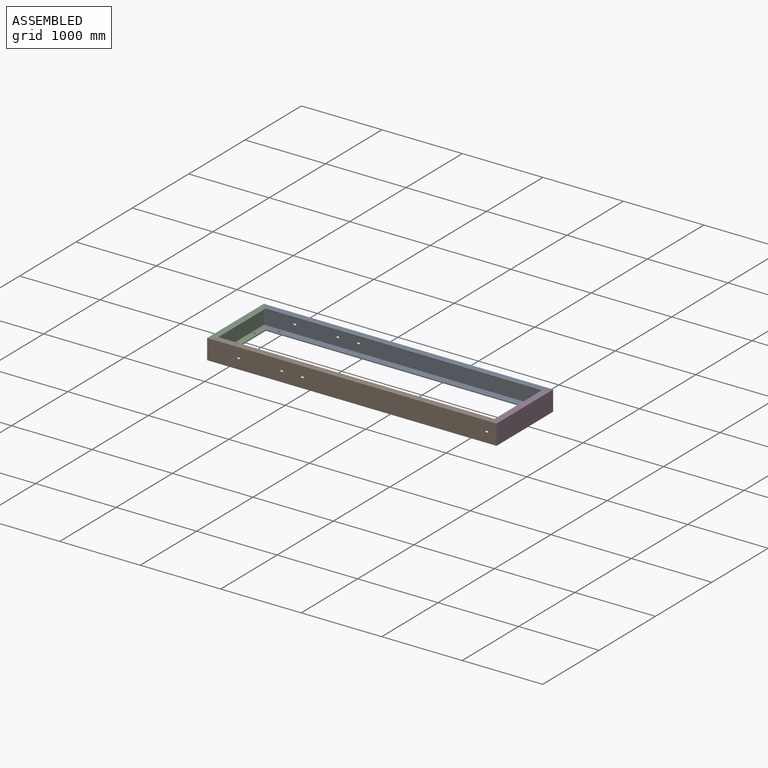
[diagram: assembled view]
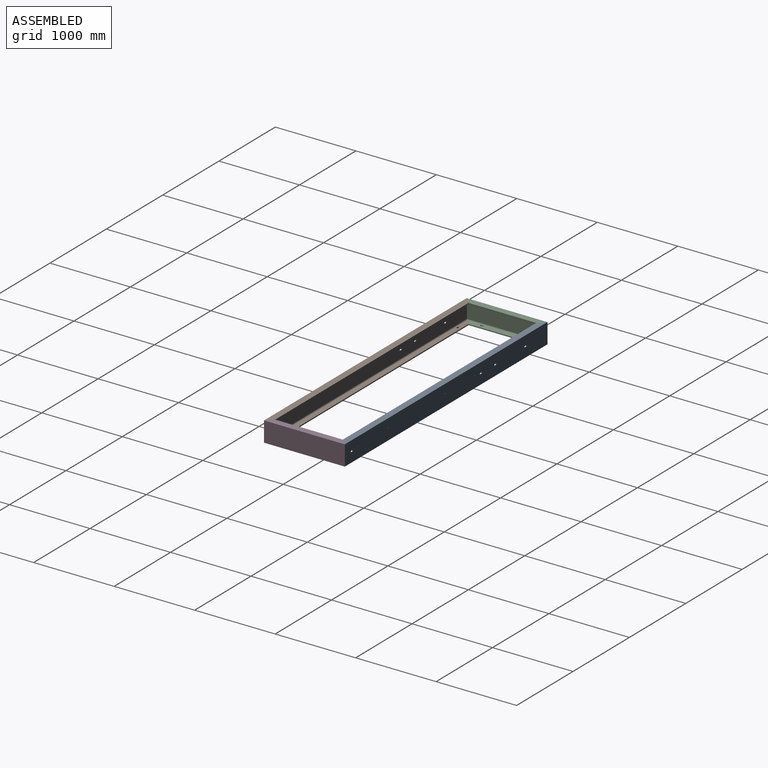
[diagram: assembled view, second angle]
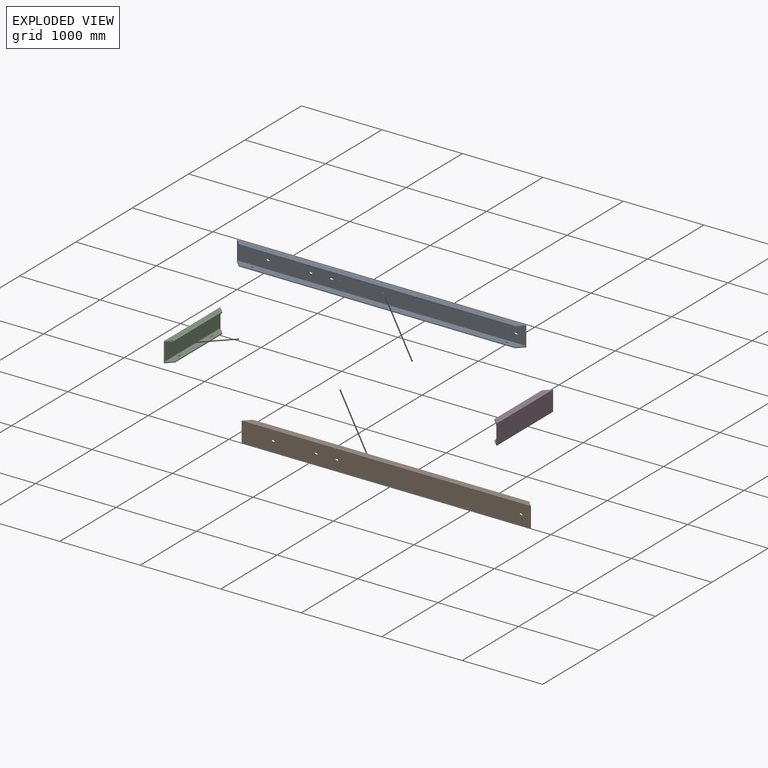
[diagram: exploded view]
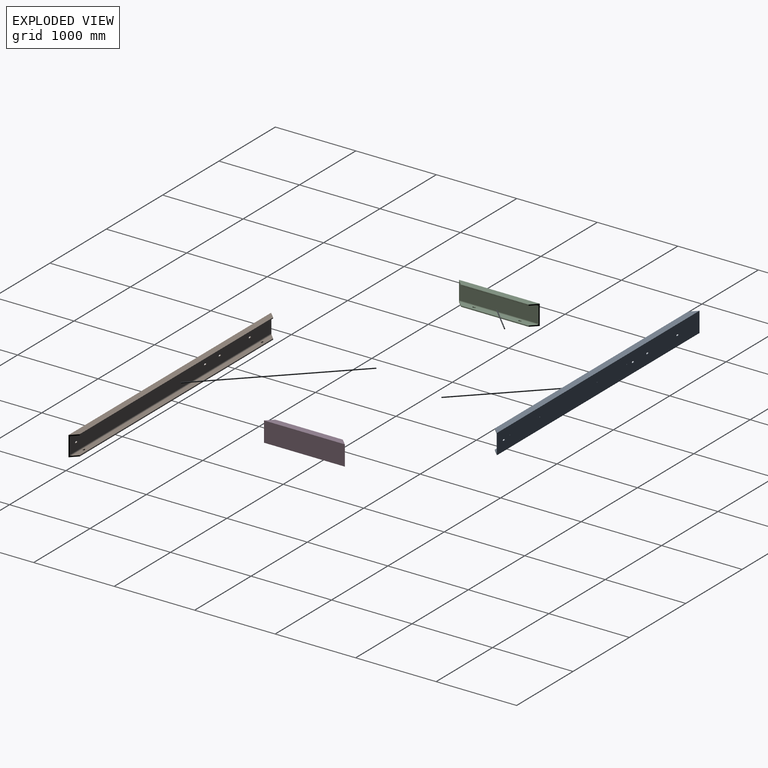
[diagram: exploded view, second angle]
ASSEMBLY  parts=4 mates=3
PART A: 42 faces, bbox 82x3595x250 mm
  f0: plane 3595x82mm, normal (0,0,1), area 288066mm2, adj f2,f11,f24,f25
  f1: plane 3431x10.8mm, normal (1,0,0), area 37054.8mm2, adj f3,f4,f24,f25
  f2: plane 3431x10.8mm, normal (1,0,0), area 37054.8mm2, adj f0,f10,f24,f25
  f3: plane 3595x82mm, normal (0,0,-1), area 286884.9mm2, adj f1,f11,f24,f25,f34,f35,f36,f37
  f4: cylinder r=3.2mm len=3437.4mm, axis (0,1,0), area 17257.8mm2, adj f1,f5,f24,f25
  f5: plane 3553x57.8mm, normal (0,0,1), area 200841.5mm2, adj f4,f6,f24,f25,f34,f35,f36,f37
  f6: cylinder r=12mm len=3577mm, axis (0,1,0), area 67260.5mm2, adj f5,f7,f24,f25
  f7: plane 3577x198mm, normal (1,0,0), area 705629.4mm2, adj f6,f8,f12,f13,f14,f15,f16,f17
  f8: cylinder r=12mm len=3577mm, axis (0,1,0), area 67260.5mm2, adj f7,f9,f24,f25
  f9: plane 3553x57.8mm, normal (0,0,-1), area 202022.6mm2, adj f8,f10,f24,f25
  f10: cylinder r=3.2mm len=3437.4mm, axis (0,1,0), area 17257.8mm2, adj f2,f9,f24,f25
  f11: plane 3595x250mm, normal (-1,0,0), area 896133.4mm2, adj f0,f3,f12,f13,f14,f15,f16,f17
  f12: plane 20x9mm, normal (0,0,1), area 180mm2, adj f7,f11,f13,f15
  f13: cylinder r=8.75mm len=17.5mm, axis (-1,0,0), area 247.4mm2, adj f7,f11,f12,f14
  f14: plane 20x9mm, normal (0,0,-1), area 180mm2, adj f7,f11,f13,f15
  f15: cylinder r=8.75mm len=17.5mm, axis (-1,0,0), area 247.4mm2, adj f7,f11,f12,f14
  f16: plane 20x9mm, normal (0,0,1), area 180mm2, adj f7,f11,f17,f19
  f17: cylinder r=8.75mm len=17.5mm, axis (-1,0,0), area 247.4mm2, adj f7,f11,f16,f18
  f18: plane 20x9mm, normal (0,0,-1), area 180mm2, adj f7,f11,f17,f19
  f19: cylinder r=8.75mm len=17.5mm, axis (-1,0,0), area 247.4mm2, adj f7,f11,f16,f18
  f20: plane 20x9mm, normal (0,0,1), area 180mm2, adj f7,f11,f21,f23
  f21: cylinder r=8.75mm len=17.5mm, axis (-1,0,0), area 247.4mm2, adj f7,f11,f20,f22
  f22: plane 20x9mm, normal (0,0,-1), area 180mm2, adj f7,f11,f21,f23
  f23: cylinder r=8.75mm len=17.5mm, axis (-1,0,0), area 247.4mm2, adj f7,f11,f20,f22
  f24: plane 250x82mm, normal (0.71,-0.71,0), area 6153.8mm2, adj f0,f1,f2,f3,f4,f5,f6,f7
  f25: plane 250x82mm, normal (0.71,0.71,0), area 6153.8mm2, adj f0,f1,f2,f3,f4,f5,f6,f7
  f26: plane 20x9mm, normal (0,0,1), area 180mm2, adj f7,f11,f27,f29
  f27: cylinder r=8.75mm len=17.5mm, axis (-1,0,0), area 247.4mm2, adj f7,f11,f26,f28
  f28: plane 20x9mm, normal (0,0,-1), area 180mm2, adj f7,f11,f27,f29
  f29: cylinder r=8.75mm len=17.5mm, axis (-1,0,0), area 247.4mm2, adj f7,f11,f26,f28
  f30: cylinder r=4.5mm len=9mm, axis (1,0,0), area 254.5mm2, adj f7,f11
  f31: cylinder r=4.5mm len=9mm, axis (1,0,0), area 254.5mm2, adj f7,f11
  f32: cylinder r=4.5mm len=9mm, axis (1,0,0), area 254.5mm2, adj f7,f11
  f33: cylinder r=4.5mm len=9mm, axis (1,0,0), area 254.5mm2, adj f7,f11
  f34: plane 20x14mm, normal (1,0,0), area 280mm2, adj f3,f5,f35,f37
  f35: cylinder r=8.75mm len=17.5mm, axis (0,0,-1), area 384.8mm2, adj f3,f5,f34,f36
  f36: plane 20x14mm, normal (-1,0,0), area 280mm2, adj f3,f5,f35,f37
  f37: cylinder r=8.75mm len=17.5mm, axis (0,0,-1), area 384.8mm2, adj f3,f5,f34,f36
  f38: plane 20x14mm, normal (1,0,0), area 280mm2, adj f3,f5,f39,f41
  f39: cylinder r=8.75mm len=17.5mm, axis (0,0,-1), area 384.8mm2, adj f3,f5,f38,f40
  f40: plane 20x14mm, normal (-1,0,0), area 280mm2, adj f3,f5,f39,f41
  f41: cylinder r=8.75mm len=17.5mm, axis (0,0,-1), area 384.8mm2, adj f3,f5,f38,f40
PART B: 38 faces, bbox 82x3595x250 mm
  f0: plane 3595x82mm, normal (0,0,1), area 286884.9mm2, adj f2,f11,f24,f25,f30,f31,f32,f33
  f1: plane 3431x10.8mm, normal (1,0,0), area 37054.8mm2, adj f3,f4,f24,f25
  f2: plane 3431x10.8mm, normal (1,0,0), area 37054.8mm2, adj f0,f10,f24,f25
  f3: plane 3595x82mm, normal (0,0,-1), area 288066mm2, adj f1,f11,f24,f25
  f4: cylinder r=3.2mm len=3437.4mm, axis (0,1,0), area 17257.8mm2, adj f1,f5,f24,f25
  f5: plane 3553x57.8mm, normal (0,0,1), area 202022.6mm2, adj f4,f6,f24,f25
  f6: cylinder r=12mm len=3577mm, axis (0,1,0), area 67260.5mm2, adj f5,f7,f24,f25
  f7: plane 3577x198mm, normal (1,0,0), area 705883.9mm2, adj f6,f8,f12,f13,f14,f15,f16,f17
  f8: cylinder r=12mm len=3577mm, axis (0,1,0), area 67260.5mm2, adj f7,f9,f24,f25
  f9: plane 3553x57.8mm, normal (0,0,-1), area 200841.5mm2, adj f8,f10,f24,f25,f30,f31,f32,f33
  f10: cylinder r=3.2mm len=3437.4mm, axis (0,1,0), area 17257.8mm2, adj f2,f9,f24,f25
  f11: plane 3595x250mm, normal (-1,0,0), area 896387.9mm2, adj f0,f3,f12,f13,f14,f15,f16,f17
  f12: plane 20x9mm, normal (0,0,1), area 180mm2, adj f7,f11,f13,f15
  f13: cylinder r=8.75mm len=17.5mm, axis (-1,0,0), area 247.4mm2, adj f7,f11,f12,f14
  f14: plane 20x9mm, normal (0,0,-1), area 180mm2, adj f7,f11,f13,f15
  f15: cylinder r=8.75mm len=17.5mm, axis (-1,0,0), area 247.4mm2, adj f7,f11,f12,f14
  f16: plane 20x9mm, normal (0,0,1), area 180mm2, adj f7,f11,f17,f19
  f17: cylinder r=8.75mm len=17.5mm, axis (-1,0,0), area 247.4mm2, adj f7,f11,f16,f18
  f18: plane 20x9mm, normal (0,0,-1), area 180mm2, adj f7,f11,f17,f19
  f19: cylinder r=8.75mm len=17.5mm, axis (-1,0,0), area 247.4mm2, adj f7,f11,f16,f18
  f20: plane 20x9mm, normal (0,0,1), area 180mm2, adj f7,f11,f21,f23
  f21: cylinder r=8.75mm len=17.5mm, axis (-1,0,0), area 247.4mm2, adj f7,f11,f20,f22
  f22: plane 20x9mm, normal (0,0,-1), area 180mm2, adj f7,f11,f21,f23
  f23: cylinder r=8.75mm len=17.5mm, axis (-1,0,0), area 247.4mm2, adj f7,f11,f20,f22
  f24: plane 250x82mm, normal (0.71,-0.71,0), area 6153.8mm2, adj f0,f1,f2,f3,f4,f5,f6,f7
  f25: plane 250x82mm, normal (0.71,0.71,0), area 6153.8mm2, adj f0,f1,f2,f3,f4,f5,f6,f7
  f26: plane 20x9mm, normal (0,0,1), area 180mm2, adj f7,f11,f27,f29
  f27: cylinder r=8.75mm len=17.5mm, axis (-1,0,0), area 247.4mm2, adj f7,f11,f26,f28
  f28: plane 20x9mm, normal (0,0,-1), area 180mm2, adj f7,f11,f27,f29
  f29: cylinder r=8.75mm len=17.5mm, axis (-1,0,0), area 247.4mm2, adj f7,f11,f26,f28
  f30: plane 20x14mm, normal (1,0,0), area 280mm2, adj f0,f9,f31,f33
  f31: cylinder r=8.75mm len=17.5mm, axis (0,0,-1), area 384.8mm2, adj f0,f9,f30,f32
  f32: plane 20x14mm, normal (-1,0,0), area 280mm2, adj f0,f9,f31,f33
  f33: cylinder r=8.75mm len=17.5mm, axis (0,0,-1), area 384.8mm2, adj f0,f9,f30,f32
  f34: plane 20x14mm, normal (1,0,0), area 280mm2, adj f0,f9,f35,f37
  f35: cylinder r=8.75mm len=17.5mm, axis (0,0,-1), area 384.8mm2, adj f0,f9,f34,f36
  f36: plane 20x14mm, normal (-1,0,0), area 280mm2, adj f0,f9,f35,f37
  f37: cylinder r=8.75mm len=17.5mm, axis (0,0,-1), area 384.8mm2, adj f0,f9,f34,f36
PART C: 22 faces, bbox 82x1004x250 mm
  f0: plane 840x10.8mm, normal (1,0,0), area 9072mm2, adj f1,f8,f12,f13
  f1: plane 1004x82mm, normal (0,0,1), area 75604mm2, adj f0,f11,f12,f13
  f2: plane 840x10.8mm, normal (1,0,0), area 9072mm2, adj f9,f10,f12,f13
  f3: plane 962x57.8mm, normal (0,0,1), area 51081.7mm2, adj f4,f10,f12,f13,f14,f15,f16,f17
  f4: cylinder r=12mm len=986mm, axis (0,1,0), area 18421.3mm2, adj f3,f5,f12,f13
  f5: plane 986x198mm, normal (1,0,0), area 195228mm2, adj f4,f6,f12,f13
  f6: cylinder r=12mm len=986mm, axis (0,1,0), area 18421.3mm2, adj f5,f7,f12,f13
  f7: plane 962x57.8mm, normal (0,0,-1), area 52262.8mm2, adj f6,f8,f12,f13
  f8: cylinder r=3.2mm len=846.4mm, axis (0,1,0), area 4234mm2, adj f0,f7,f12,f13
  f9: plane 1004x82mm, normal (0,0,-1), area 74422.9mm2, adj f2,f11,f12,f13,f14,f15,f16,f17
  f10: cylinder r=3.2mm len=846.4mm, axis (0,1,0), area 4234mm2, adj f2,f3,f12,f13
  f11: plane 1004x250mm, normal (-1,0,0), area 251000mm2, adj f1,f9,f12,f13
  f12: plane 250x82mm, normal (0.71,-0.71,0), area 6153.8mm2, adj f0,f1,f2,f3,f4,f5,f6,f7
  f13: plane 250x82mm, normal (0.71,0.71,0), area 6153.8mm2, adj f0,f1,f2,f3,f4,f5,f6,f7
  f14: plane 20x14mm, normal (1,0,0), area 280mm2, adj f3,f9,f15,f17
  f15: cylinder r=8.75mm len=17.5mm, axis (0,0,-1), area 384.8mm2, adj f3,f9,f14,f16
  f16: plane 20x14mm, normal (-1,0,0), area 280mm2, adj f3,f9,f15,f17
  f17: cylinder r=8.75mm len=17.5mm, axis (0,0,-1), area 384.8mm2, adj f3,f9,f14,f16
  f18: plane 20x14mm, normal (1,0,0), area 280mm2, adj f3,f9,f19,f21
  f19: cylinder r=8.75mm len=17.5mm, axis (0,0,-1), area 384.8mm2, adj f3,f9,f18,f20
  f20: plane 20x14mm, normal (-1,0,0), area 280mm2, adj f3,f9,f19,f21
  f21: cylinder r=8.75mm len=17.5mm, axis (0,0,-1), area 384.8mm2, adj f3,f9,f18,f20
PART D: same geometry as C
PLACE A rot(axis=(0,0,-1),90deg) t=(1391.46,339.15,263.94)mm
PLACE B rot(axis=(-0.71,-0.71,0),180deg) t=(1391.46,-664.85,263.94)mm
PLACE C t=(-2203.54,339.15,263.94)mm
PLACE D rot(axis=(0,0,1),180deg) t=(1391.46,-664.85,263.94)mm
MATE fastened C.f13 <-> A.f24  axis (0.71,0.71,0) through (-2203.54,339.15,263.94)mm
MATE fastened B.f24 <-> C.f12  axis (-0.71,0.71,0) through (-2203.54,-664.85,263.94)mm
MATE fastened D.f12 <-> A.f25  axis (-0.71,0.71,0) through (1391.46,339.15,263.94)mm
